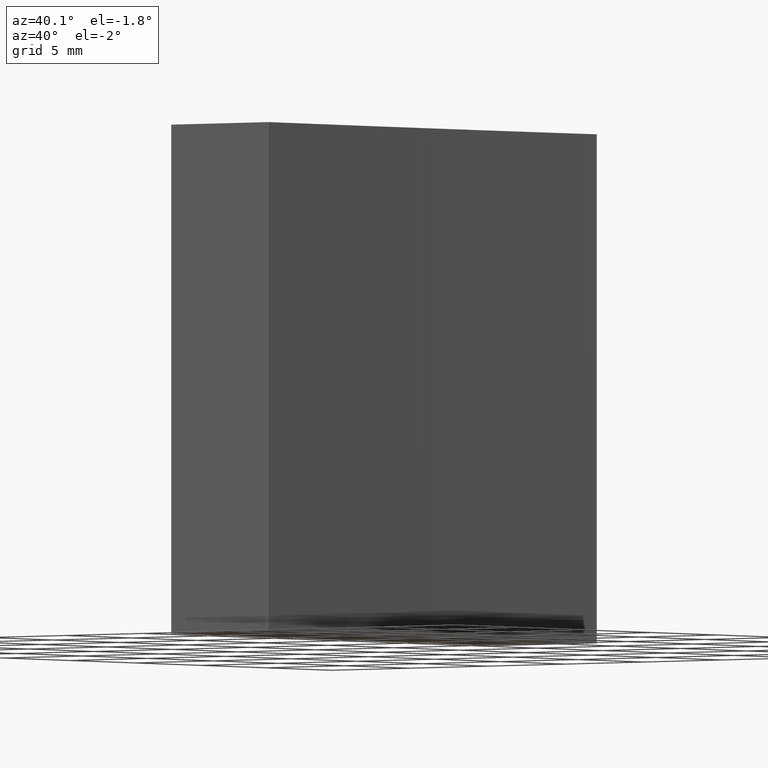
[diagram: clean part render]
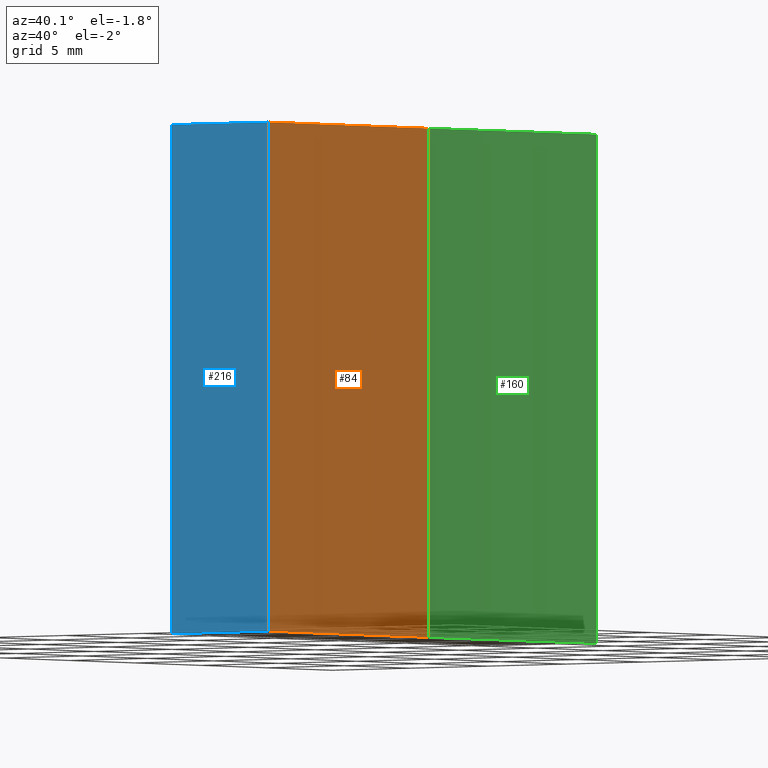
[diagram: same view with three faces highlighted in distinct colors, each labeled with its STEP entity id]
A machine part, auxiliary view with three faces highlighted in distinct colors.
Their STEP definitions:

[orange] entity #84 — the highlighted cylindrical surface (partial cylindrical patch) has radius 300 mm, axis along (-0, -0, -1).
#2 = FACE_OUTER_BOUND ( 'NONE', #68, .T. ) ;
#3 = DIRECTION ( 'NONE',  ( -0.0000000000000000000, -0.0000000000000000000, -1.000000000000000000 ) ) ;
#5 = CARTESIAN_POINT ( 'NONE',  ( 290.9676654242437100, 54.35792926776714800, 0.0000000000000000000 ) ) ;
#14 = LINE ( 'NONE', #90, #210 ) ;
#15 = VERTEX_POINT ( 'NONE', #113 ) ;
#24 = CARTESIAN_POINT ( 'NONE',  ( 290.9676654242437100, 54.35792926776714800, 25.00000000000000000 ) ) ;
#34 = EDGE_CURVE ( 'NONE', #188, #150, #200, .T. ) ;
#36 = ORIENTED_EDGE ( 'NONE', *, *, #58, .F. ) ;
#47 = DIRECTION ( 'NONE',  ( -0.0000000000000000000, -0.0000000000000000000, -1.000000000000000000 ) ) ;
#49 = ORIENTED_EDGE ( 'NONE', *, *, #165, .T. ) ;
#55 = CARTESIAN_POINT ( 'NONE',  ( 590.7071356312887900, 66.85792926776709100, 0.0000000000000000000 ) ) ;
#56 = CARTESIAN_POINT ( 'NONE',  ( 290.7071356312886800, 66.85792926776709100, 25.00000000000000000 ) ) ;
#58 = EDGE_CURVE ( 'NONE', #123, #150, #14, .T. ) ;
#59 = LINE ( 'NONE', #24, #233 ) ;
#68 = EDGE_LOOP ( 'NONE', ( #36, #124, #49, #164 ) ) ;
#73 = AXIS2_PLACEMENT_3D ( 'NONE', #169, #132, #133 ) ;
#79 = CARTESIAN_POINT ( 'NONE',  ( 290.7071356312886800, 66.85792926776709100, 0.0000000000000000000 ) ) ;
#84 = ADVANCED_FACE ( 'NONE', ( #2 ), #130, .F. ) ;
#90 = CARTESIAN_POINT ( 'NONE',  ( 290.7071356312886800, 66.85792926776709100, 25.00000000000000000 ) ) ;
#113 = CARTESIAN_POINT ( 'NONE',  ( 290.9676654242437100, 54.35792926776714800, 25.00000000000000000 ) ) ;
#121 = AXIS2_PLACEMENT_3D ( 'NONE', #55, #3, #208 ) ;
#123 = VERTEX_POINT ( 'NONE', #56 ) ;
#124 = ORIENTED_EDGE ( 'NONE', *, *, #215, .F. ) ;
#130 = CYLINDRICAL_SURFACE ( 'NONE', #73, 300.0000000000000600 ) ;
#131 = DIRECTION ( 'NONE',  ( -0.0000000000000000000, -0.0000000000000000000, -1.000000000000000000 ) ) ;
#132 = DIRECTION ( 'NONE',  ( -0.0000000000000000000, -0.0000000000000000000, -1.000000000000000000 ) ) ;
#133 = DIRECTION ( 'NONE',  ( -1.000000000000000000, 0.0000000000000000000, 0.0000000000000000000 ) ) ;
#150 = VERTEX_POINT ( 'NONE', #79 ) ;
#154 = CARTESIAN_POINT ( 'NONE',  ( 590.7071356312887900, 66.85792926776709100, 25.00000000000000000 ) ) ;
#155 = DIRECTION ( 'NONE',  ( -0.0000000000000000000, -0.0000000000000000000, -1.000000000000000000 ) ) ;
#164 = ORIENTED_EDGE ( 'NONE', *, *, #34, .T. ) ;
#165 = EDGE_CURVE ( 'NONE', #15, #188, #59, .T. ) ;
#166 = AXIS2_PLACEMENT_3D ( 'NONE', #154, #155, #191 ) ;
#169 = CARTESIAN_POINT ( 'NONE',  ( 590.7071356312887900, 66.85792926776709100, 25.00000000000000000 ) ) ;
#175 = CIRCLE ( 'NONE', #166, 300.0000000000000600 ) ;
#188 = VERTEX_POINT ( 'NONE', #5 ) ;
#191 = DIRECTION ( 'NONE',  ( 1.000000000000000000, 0.0000000000000000000, 0.0000000000000000000 ) ) ;
#200 = CIRCLE ( 'NONE', #121, 300.0000000000000600 ) ;
#208 = DIRECTION ( 'NONE',  ( 1.000000000000000000, 0.0000000000000000000, 0.0000000000000000000 ) ) ;
#210 = VECTOR ( 'NONE', #131, 1000.000000000000000 ) ;
#215 = EDGE_CURVE ( 'NONE', #15, #123, #175, .T. ) ;
#233 = VECTOR ( 'NONE', #47, 1000.000000000000000 ) ;

[blue] entity #216 — the highlighted planar face has unit normal (-0, 1, 0).
#5 = CARTESIAN_POINT ( 'NONE',  ( 290.9676654242437100, 54.35792926776714800, 0.0000000000000000000 ) ) ;
#6 = ORIENTED_EDGE ( 'NONE', *, *, #201, .T. ) ;
#8 = EDGE_CURVE ( 'NONE', #127, #15, #87, .T. ) ;
#15 = VERTEX_POINT ( 'NONE', #113 ) ;
#16 = DIRECTION ( 'NONE',  ( 1.000000000000000000, 3.325067110953557600E-015, -0.0000000000000000000 ) ) ;
#17 = CARTESIAN_POINT ( 'NONE',  ( 284.7071356312820900, 54.35792926776707600, 0.0000000000000000000 ) ) ;
#20 = ORIENTED_EDGE ( 'NONE', *, *, #8, .F. ) ;
#22 = CARTESIAN_POINT ( 'NONE',  ( 290.9676654242437600, 54.35792926776709800, 0.0000000000000000000 ) ) ;
#24 = CARTESIAN_POINT ( 'NONE',  ( 290.9676654242437100, 54.35792926776714800, 25.00000000000000000 ) ) ;
#26 = VERTEX_POINT ( 'NONE', #17 ) ;
#31 = LINE ( 'NONE', #22, #219 ) ;
#46 = DIRECTION ( 'NONE',  ( 1.000000000000000000, 3.325067110953557600E-015, -0.0000000000000000000 ) ) ;
#47 = DIRECTION ( 'NONE',  ( -0.0000000000000000000, -0.0000000000000000000, -1.000000000000000000 ) ) ;
#53 = LINE ( 'NONE', #142, #156 ) ;
#57 = ORIENTED_EDGE ( 'NONE', *, *, #165, .F. ) ;
#59 = LINE ( 'NONE', #24, #233 ) ;
#63 = DIRECTION ( 'NONE',  ( -1.000000000000000000, -3.325067110953558000E-015, 0.0000000000000000000 ) ) ;
#78 = FACE_OUTER_BOUND ( 'NONE', #92, .T. ) ;
#87 = LINE ( 'NONE', #206, #148 ) ;
#92 = EDGE_LOOP ( 'NONE', ( #6, #57, #20, #218 ) ) ;
#96 = CARTESIAN_POINT ( 'NONE',  ( 290.9676654242437600, 54.35792926776709800, 25.00000000000000000 ) ) ;
#113 = CARTESIAN_POINT ( 'NONE',  ( 290.9676654242437100, 54.35792926776714800, 25.00000000000000000 ) ) ;
#114 = DIRECTION ( 'NONE',  ( -3.325067110953558000E-015, 1.000000000000000000, 0.0000000000000000000 ) ) ;
#127 = VERTEX_POINT ( 'NONE', #194 ) ;
#142 = CARTESIAN_POINT ( 'NONE',  ( 284.7071356312820900, 54.35792926776707600, 25.00000000000000000 ) ) ;
#148 = VECTOR ( 'NONE', #16, 1000.000000000000000 ) ;
#156 = VECTOR ( 'NONE', #231, 1000.000000000000000 ) ;
#165 = EDGE_CURVE ( 'NONE', #15, #188, #59, .T. ) ;
#176 = PLANE ( 'NONE',  #223 ) ;
#188 = VERTEX_POINT ( 'NONE', #5 ) ;
#194 = CARTESIAN_POINT ( 'NONE',  ( 284.7071356312820900, 54.35792926776707600, 25.00000000000000000 ) ) ;
#201 = EDGE_CURVE ( 'NONE', #26, #188, #31, .T. ) ;
#206 = CARTESIAN_POINT ( 'NONE',  ( 290.9676654242437600, 54.35792926776709800, 25.00000000000000000 ) ) ;
#216 = ADVANCED_FACE ( 'NONE', ( #78 ), #176, .F. ) ;
#218 = ORIENTED_EDGE ( 'NONE', *, *, #235, .T. ) ;
#219 = VECTOR ( 'NONE', #46, 1000.000000000000000 ) ;
#223 = AXIS2_PLACEMENT_3D ( 'NONE', #96, #114, #63 ) ;
#231 = DIRECTION ( 'NONE',  ( -0.0000000000000000000, -0.0000000000000000000, -1.000000000000000000 ) ) ;
#233 = VECTOR ( 'NONE', #47, 1000.000000000000000 ) ;
#235 = EDGE_CURVE ( 'NONE', #127, #26, #53, .T. ) ;

[green] entity #160 — the highlighted cylindrical surface (partial cylindrical patch) has radius 300 mm, axis along (-0, -0, -1).
#11 = EDGE_LOOP ( 'NONE', ( #70, #118, #214, #65 ) ) ;
#14 = LINE ( 'NONE', #90, #210 ) ;
#19 = CARTESIAN_POINT ( 'NONE',  ( 590.7071356312887900, 66.85792926776709100, 25.00000000000000000 ) ) ;
#28 = AXIS2_PLACEMENT_3D ( 'NONE', #19, #178, #77 ) ;
#30 = LINE ( 'NONE', #230, #203 ) ;
#37 = AXIS2_PLACEMENT_3D ( 'NONE', #229, #177, #228 ) ;
#45 = DIRECTION ( 'NONE',  ( -0.0000000000000000000, -0.0000000000000000000, -1.000000000000000000 ) ) ;
#56 = CARTESIAN_POINT ( 'NONE',  ( 290.7071356312886800, 66.85792926776709100, 25.00000000000000000 ) ) ;
#58 = EDGE_CURVE ( 'NONE', #123, #150, #14, .T. ) ;
#62 = VERTEX_POINT ( 'NONE', #209 ) ;
#65 = ORIENTED_EDGE ( 'NONE', *, *, #232, .F. ) ;
#70 = ORIENTED_EDGE ( 'NONE', *, *, #80, .F. ) ;
#74 = CIRCLE ( 'NONE', #37, 300.0000000000000600 ) ;
#77 = DIRECTION ( 'NONE',  ( -1.000000000000000000, 0.0000000000000000000, 0.0000000000000000000 ) ) ;
#79 = CARTESIAN_POINT ( 'NONE',  ( 290.7071356312886800, 66.85792926776709100, 0.0000000000000000000 ) ) ;
#80 = EDGE_CURVE ( 'NONE', #123, #62, #74, .T. ) ;
#90 = CARTESIAN_POINT ( 'NONE',  ( 290.7071356312886800, 66.85792926776709100, 25.00000000000000000 ) ) ;
#95 = VERTEX_POINT ( 'NONE', #136 ) ;
#97 = DIRECTION ( 'NONE',  ( 1.000000000000000000, 0.0000000000000000000, 0.0000000000000000000 ) ) ;
#118 = ORIENTED_EDGE ( 'NONE', *, *, #58, .T. ) ;
#123 = VERTEX_POINT ( 'NONE', #56 ) ;
#131 = DIRECTION ( 'NONE',  ( -0.0000000000000000000, -0.0000000000000000000, -1.000000000000000000 ) ) ;
#136 = CARTESIAN_POINT ( 'NONE',  ( 290.9676654242437600, 79.35792926776707600, 0.0000000000000000000 ) ) ;
#137 = CARTESIAN_POINT ( 'NONE',  ( 590.7071356312887900, 66.85792926776709100, 0.0000000000000000000 ) ) ;
#139 = CYLINDRICAL_SURFACE ( 'NONE', #28, 300.0000000000000600 ) ;
#140 = AXIS2_PLACEMENT_3D ( 'NONE', #137, #45, #97 ) ;
#150 = VERTEX_POINT ( 'NONE', #79 ) ;
#152 = FACE_OUTER_BOUND ( 'NONE', #11, .T. ) ;
#160 = ADVANCED_FACE ( 'NONE', ( #152 ), #139, .F. ) ;
#177 = DIRECTION ( 'NONE',  ( -0.0000000000000000000, -0.0000000000000000000, -1.000000000000000000 ) ) ;
#178 = DIRECTION ( 'NONE',  ( -0.0000000000000000000, -0.0000000000000000000, -1.000000000000000000 ) ) ;
#185 = EDGE_CURVE ( 'NONE', #150, #95, #227, .T. ) ;
#192 = DIRECTION ( 'NONE',  ( -0.0000000000000000000, -0.0000000000000000000, -1.000000000000000000 ) ) ;
#203 = VECTOR ( 'NONE', #192, 1000.000000000000000 ) ;
#209 = CARTESIAN_POINT ( 'NONE',  ( 290.9676654242437600, 79.35792926776707600, 25.00000000000000000 ) ) ;
#210 = VECTOR ( 'NONE', #131, 1000.000000000000000 ) ;
#214 = ORIENTED_EDGE ( 'NONE', *, *, #185, .T. ) ;
#227 = CIRCLE ( 'NONE', #140, 300.0000000000000600 ) ;
#228 = DIRECTION ( 'NONE',  ( 1.000000000000000000, 0.0000000000000000000, 0.0000000000000000000 ) ) ;
#229 = CARTESIAN_POINT ( 'NONE',  ( 590.7071356312887900, 66.85792926776709100, 25.00000000000000000 ) ) ;
#230 = CARTESIAN_POINT ( 'NONE',  ( 290.9676654242437600, 79.35792926776707600, 25.00000000000000000 ) ) ;
#232 = EDGE_CURVE ( 'NONE', #62, #95, #30, .T. ) ;